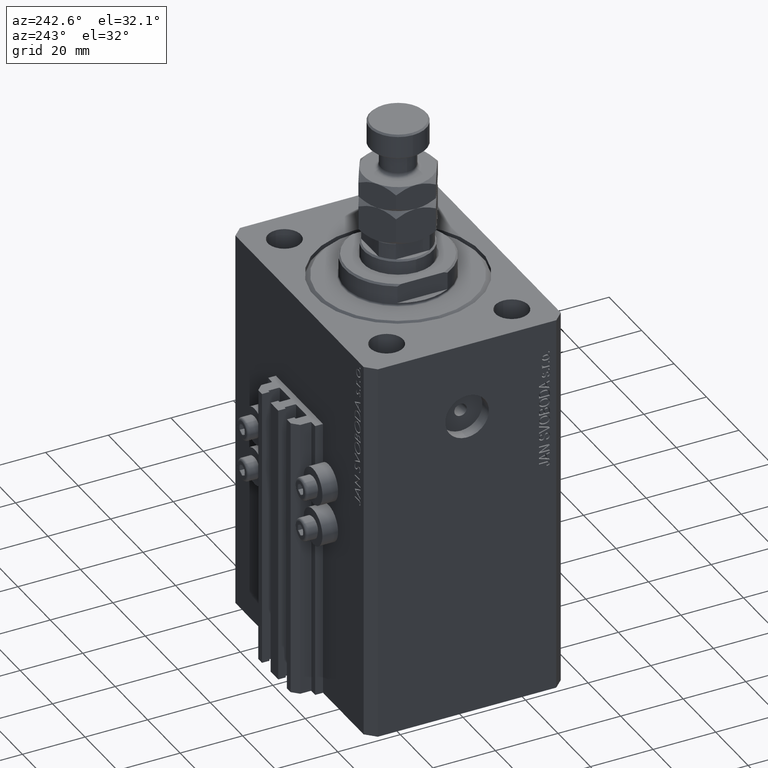
[diagram: clean part render]
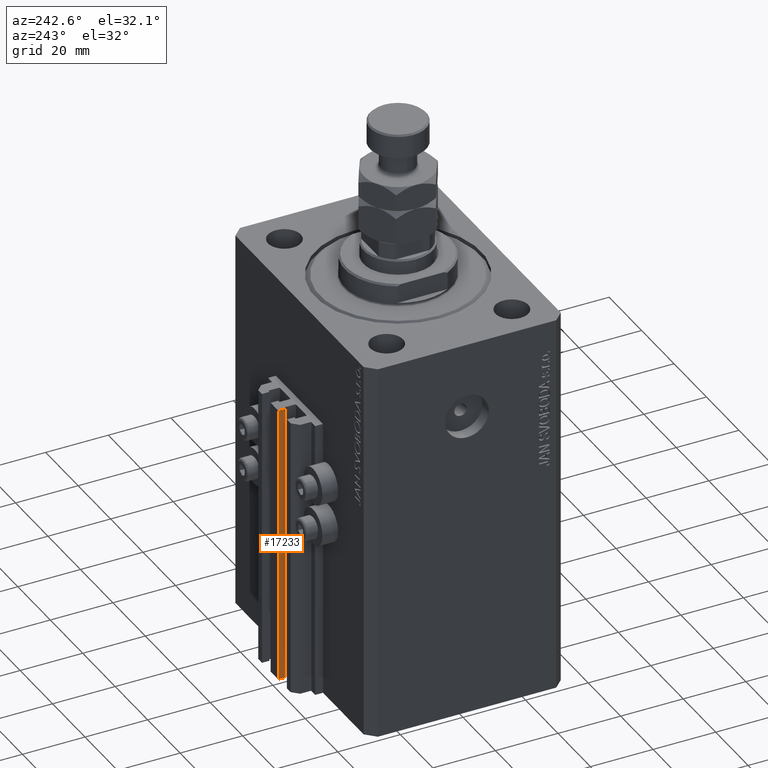
[diagram: same view with one face highlighted and labeled with its STEP entity id]
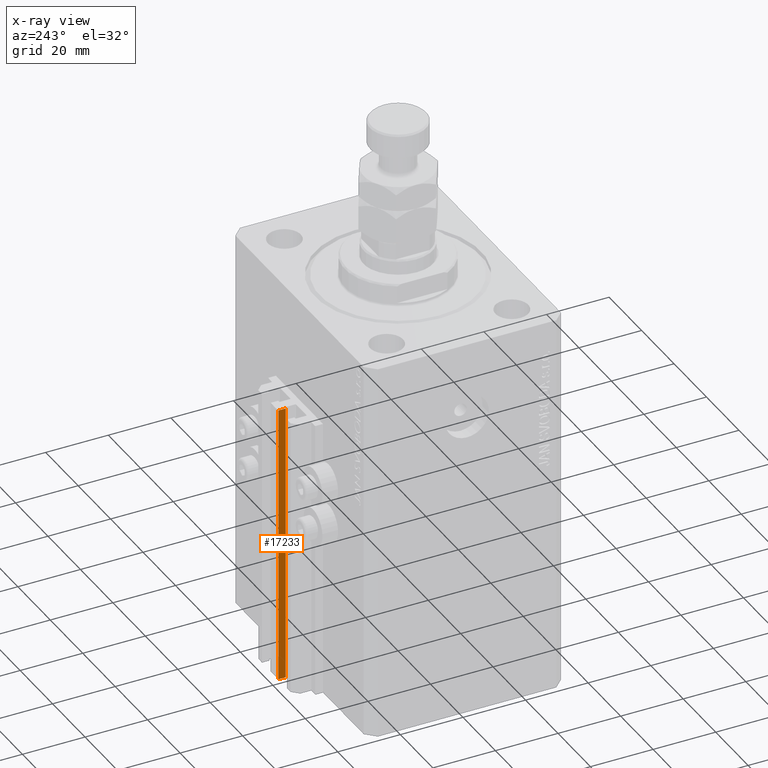
[diagram: x-ray of the same camera — body ghosted, the highlighted face saturated]
A machine part, auxiliary view. The second image highlights one B-rep face of the part: STEP entity #17233.
The next image is the same camera in x-ray: the body ghosted, the highlighted face saturated — about 0% of this face is hidden behind the body in this view.
In plain terms, the highlighted planar face has unit normal (-1, -0, 0).
Its self-contained STEP definition (entity closure, byte-faithful):
#944 = CARTESIAN_POINT ( 'NONE',  ( -2.350000000000003642, 39.50000000000000711, -123.0000000000000000 ) ) ;
#2406 = LINE ( 'NONE', #17523, #7004 ) ;
#3104 = EDGE_CURVE ( 'NONE', #37033, #28955, #12775, .T. ) ;
#4745 = CARTESIAN_POINT ( 'NONE',  ( -2.350000000000003642, 39.50000000000000711, -33.00000000000000000 ) ) ;
#4854 = DIRECTION ( 'NONE',  ( 0.000000000000000000, 0.000000000000000000, 1.000000000000000000 ) ) ;
#7004 = VECTOR ( 'NONE', #11053, 1000.000000000000000 ) ;
#8616 = DIRECTION ( 'NONE',  ( 1.807003620809174632E-16, -1.000000000000000000, 0.000000000000000000 ) ) ;
#11053 = DIRECTION ( 'NONE',  ( 1.807003620809174632E-16, -1.000000000000000000, 0.000000000000000000 ) ) ;
#11200 = ORIENTED_EDGE ( 'NONE', *, *, #30731, .T. ) ;
#12775 = LINE ( 'NONE', #27389, #41351 ) ;
#12999 = ORIENTED_EDGE ( 'NONE', *, *, #3104, .F. ) ;
#14237 = CARTESIAN_POINT ( 'NONE',  ( -2.350000000000003642, 39.50000000000000711, -123.0000000000000000 ) ) ;
#14352 = VECTOR ( 'NONE', #30694, 1000.000000000000000 ) ;
#14890 = EDGE_CURVE ( 'NONE', #37033, #15509, #34885, .T. ) ;
#15509 = VERTEX_POINT ( 'NONE', #26595 ) ;
#15578 = CARTESIAN_POINT ( 'NONE',  ( -2.350000000000003197, 37.10000000000000853, -123.0000000000000000 ) ) ;
#16030 = EDGE_LOOP ( 'NONE', ( #42410, #12999, #43160, #11200 ) ) ;
#17233 = ADVANCED_FACE ( 'NONE', ( #38002 ), #48913, .T. ) ;
#17523 = CARTESIAN_POINT ( 'NONE',  ( -2.350000000000003642, 39.50000000000000711, -33.00000000000000000 ) ) ;
#22408 = DIRECTION ( 'NONE',  ( 1.807003620809174878E-16, -1.000000000000000000, 0.000000000000000000 ) ) ;
#24171 = EDGE_CURVE ( 'NONE', #28955, #28323, #2406, .T. ) ;
#26595 = CARTESIAN_POINT ( 'NONE',  ( -2.350000000000003197, 37.10000000000000853, -123.0000000000000000 ) ) ;
#27389 = CARTESIAN_POINT ( 'NONE',  ( -2.350000000000003642, 39.50000000000000711, -123.0000000000000000 ) ) ;
#28323 = VERTEX_POINT ( 'NONE', #31488 ) ;
#28955 = VERTEX_POINT ( 'NONE', #4745 ) ;
#30694 = DIRECTION ( 'NONE',  ( 0.000000000000000000, 0.000000000000000000, 1.000000000000000000 ) ) ;
#30731 = EDGE_CURVE ( 'NONE', #15509, #28323, #34415, .T. ) ;
#31488 = CARTESIAN_POINT ( 'NONE',  ( -2.350000000000003197, 37.10000000000000853, -33.00000000000000000 ) ) ;
#34415 = LINE ( 'NONE', #15578, #14352 ) ;
#34885 = LINE ( 'NONE', #944, #47912 ) ;
#37033 = VERTEX_POINT ( 'NONE', #41653 ) ;
#38002 = FACE_OUTER_BOUND ( 'NONE', #16030, .T. ) ;
#41351 = VECTOR ( 'NONE', #4854, 1000.000000000000000 ) ;
#41481 = DIRECTION ( 'NONE',  ( -1.000000000000000000, -1.807003620809174878E-16, 0.000000000000000000 ) ) ;
#41653 = CARTESIAN_POINT ( 'NONE',  ( -2.350000000000003642, 39.50000000000000711, -123.0000000000000000 ) ) ;
#42410 = ORIENTED_EDGE ( 'NONE', *, *, #24171, .F. ) ;
#43160 = ORIENTED_EDGE ( 'NONE', *, *, #14890, .T. ) ;
#44847 = AXIS2_PLACEMENT_3D ( 'NONE', #14237, #41481, #22408 ) ;
#47912 = VECTOR ( 'NONE', #8616, 1000.000000000000000 ) ;
#48913 = PLANE ( 'NONE',  #44847 ) ;